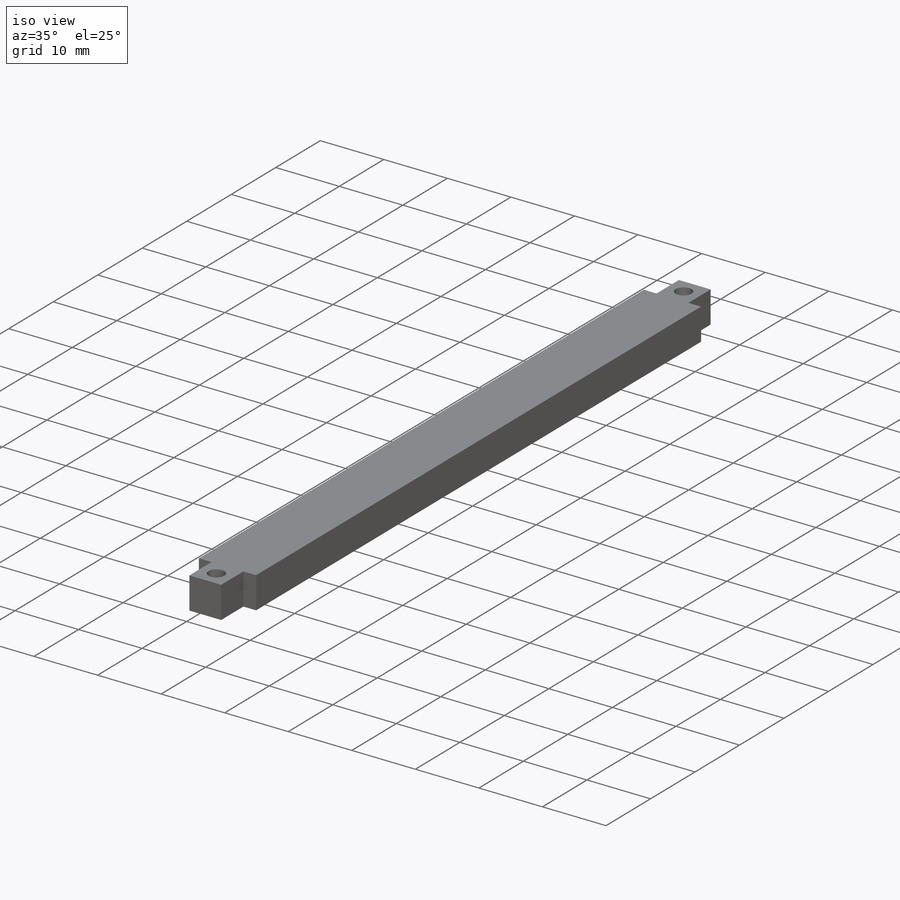
[diagram: iso view]
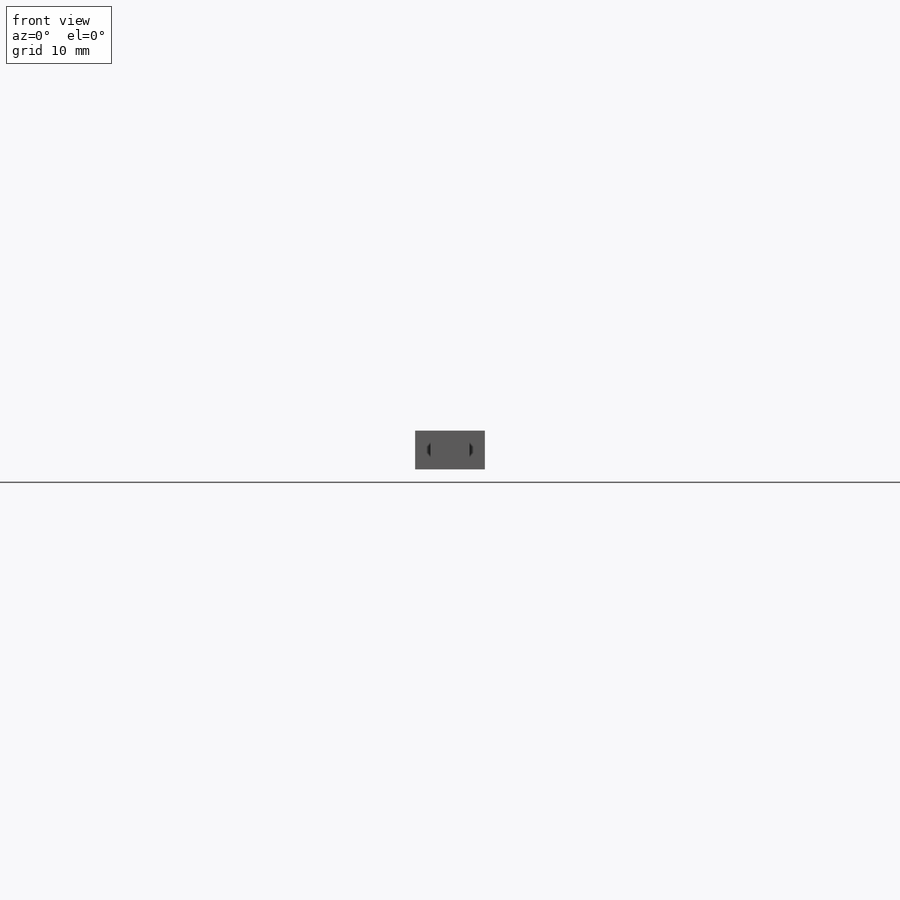
[diagram: front view]
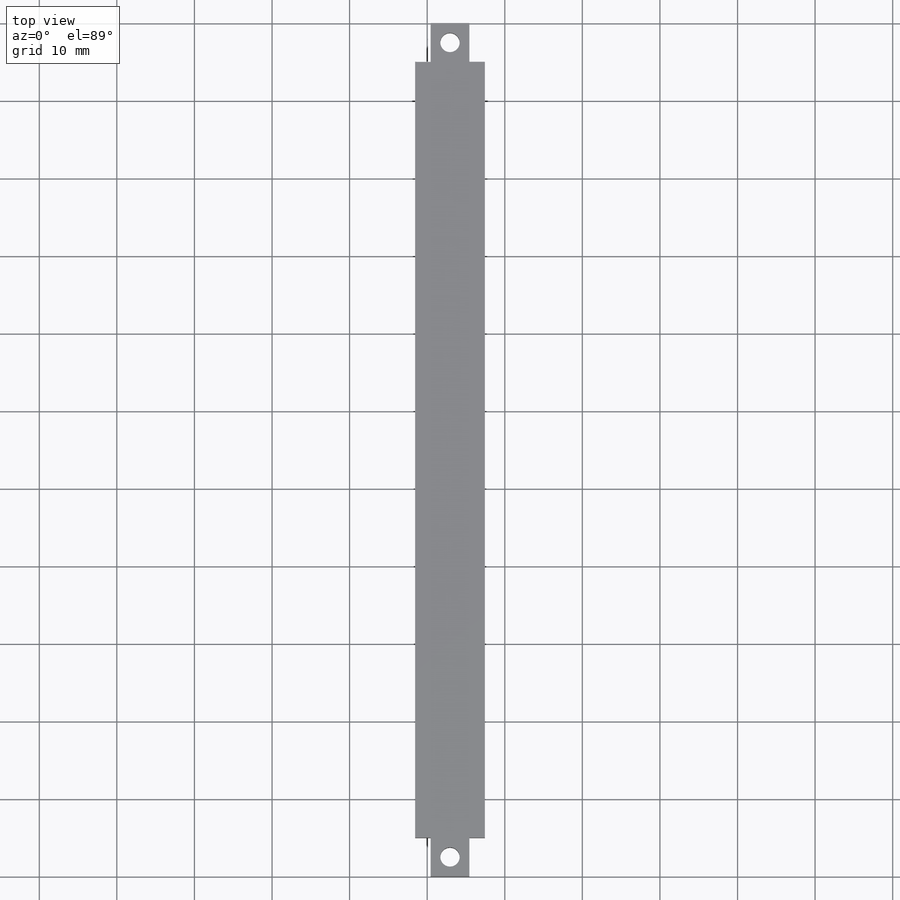
[diagram: top view]
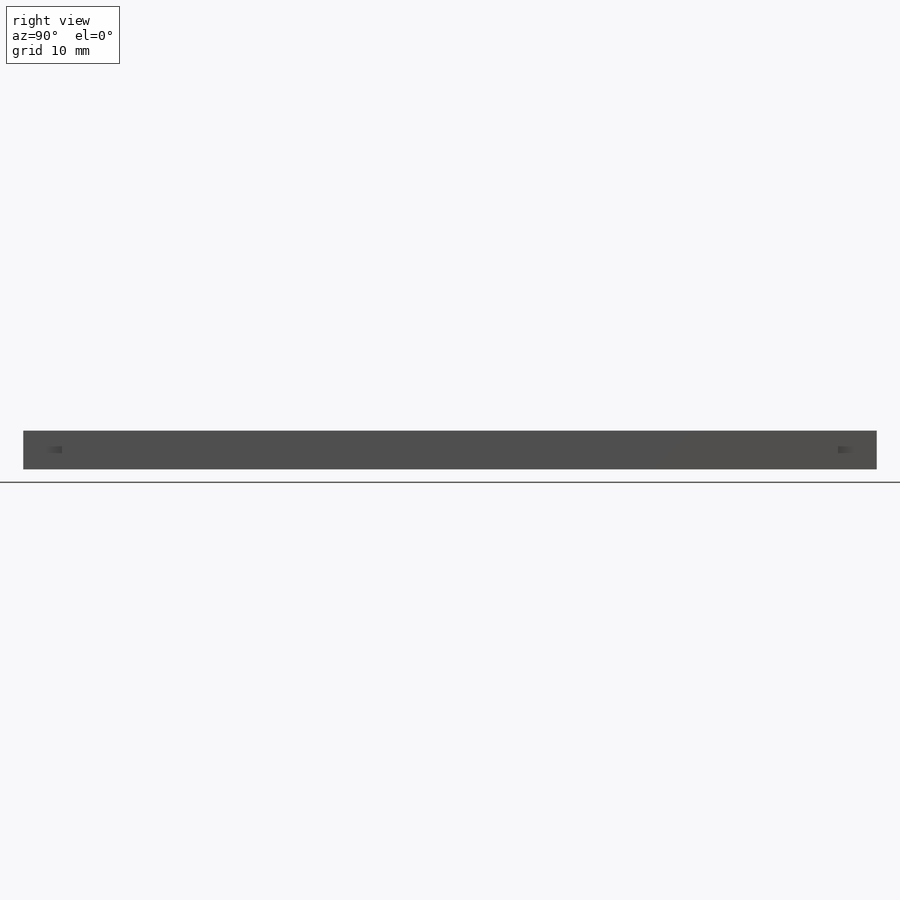
[diagram: right view]
SOLIDWORKS PART (.sldprt)
format: sldprt  version: not decoded by parser v0  size: 198,144 bytes
history: native  units: mm
features: sketch x7, extrude x3, material x1, plane x1, hole x1, mirror x1 (+12 scaffold rows collapsed)
feature tree (26):
  scaffold x12  (default folders/planes/origin — collapsed)
  material  "Material <not specified>"
  sketch  "Sketch1"  dims[D1=5.0mm D2=5.0mm]
  extrude  "Boss-Extrude1"  Depth=110mm
  sketch  "Sketch2"  dims[D1=2.0mm]
  extrude  "Boss-Extrude2"  Depth=5mm
  sketch  "Sketch3"  dims[D1=2.0mm]
  extrude  "Boss-Extrude3"  Depth=5mm
  sketch  "Sketch4"
  sketch  "Sketch5"
  plane  "Plane1"
  hole  "M3 Tapped Hole1"  Diameter=2.5mm Depth=8mm
  sketch  "Sketch7"
  sketch  "Sketch6"  dims[hole-wizard template sketch: 50 standard entries collapsed; hole parameters above]
  mirror  "Mirror1"
decode coverage: 8 of 12 modeling features carry decoded parameters
note: ~ marks probable driven/reference dimensions
note: suppression state not decoded; provenance and decode notes live in map.json
